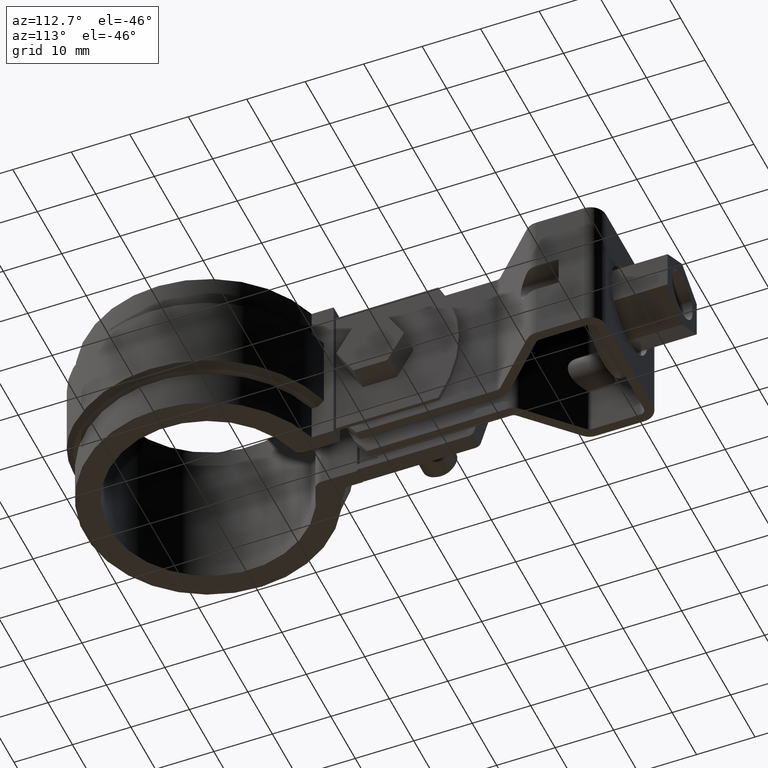
[diagram: clean part render]
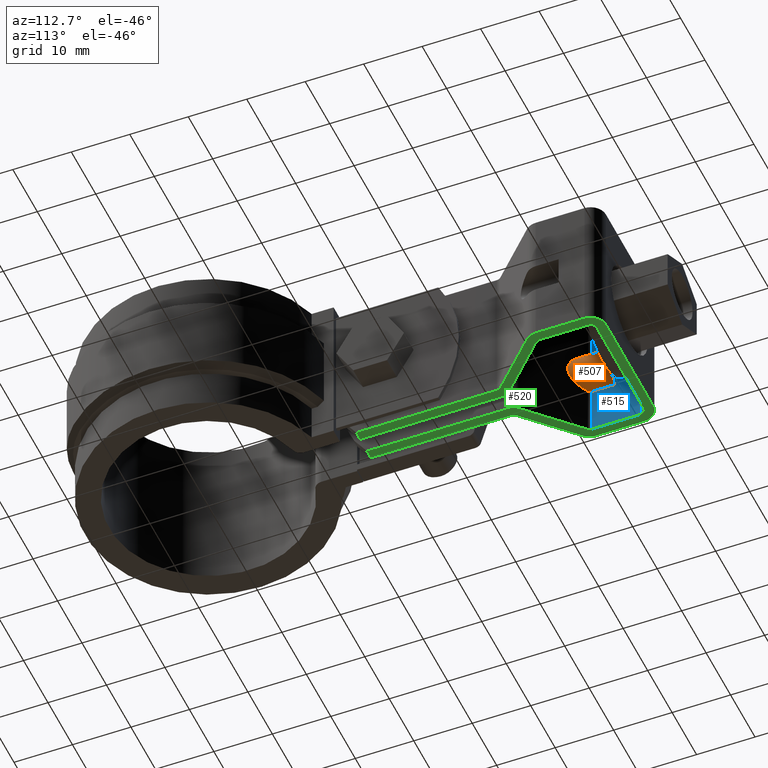
[diagram: same view with three faces highlighted in distinct colors, each labeled with its STEP entity id]
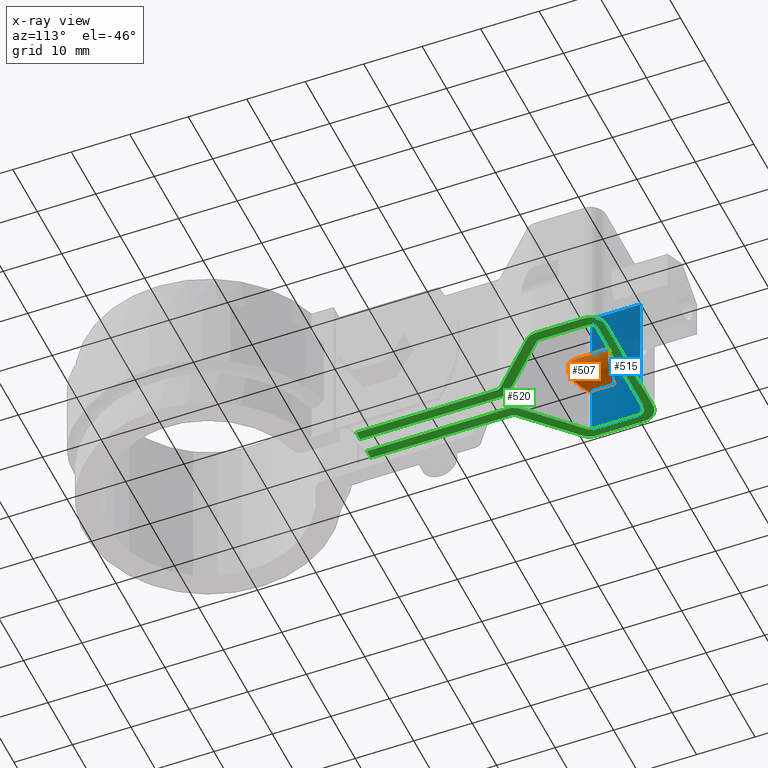
[diagram: x-ray of the same camera — body ghosted, the three highlighted faces saturated]
A machine part, auxiliary view with three faces highlighted in distinct colors.
The next image is the same camera in x-ray (body ghosted, the three faces saturated) — at least one of them is partly hidden behind the body in this view.
Their STEP definitions:

[orange] entity #507 — the highlighted cylindrical surface (edge-blend (fillet) strip) has radius 4.25 mm, axis along (-0, -1, -0).
#507 = ADVANCED_FACE( '', ( #995 ), #996, .T. );
#995 = FACE_OUTER_BOUND( '', #2088, .T. );
#996 = CYLINDRICAL_SURFACE( '', #2089, 4.24999999999996 );
#2088 = EDGE_LOOP( '', ( #4572, #4573, #4574, #4575, #4576, #4577 ) );
#2089 = AXIS2_PLACEMENT_3D( '', #4578, #4579, #4580 );
#4572 = ORIENTED_EDGE( '', *, *, #6560, .T. );
#4573 = ORIENTED_EDGE( '', *, *, #6561, .T. );
#4574 = ORIENTED_EDGE( '', *, *, #6562, .F. );
#4575 = ORIENTED_EDGE( '', *, *, #6563, .T. );
#4576 = ORIENTED_EDGE( '', *, *, #6564, .T. );
#4577 = ORIENTED_EDGE( '', *, *, #6565, .T. );
#4578 = CARTESIAN_POINT( '', ( -12.2499991883340, 55.0043600835313, -12.4999979356177 ) );
#4579 = DIRECTION( '', ( -6.88262000006329E-009, -1.00000000000000, -1.66499459745878E-008 ) );
#4580 = DIRECTION( '', ( 4.22902755342790E-010, -1.66499459774985E-008, 1.00000000000000 ) );
#6560 = EDGE_CURVE( '', #7783, #7784, #7785, .T. );
#6561 = EDGE_CURVE( '', #7784, #7786, #7787, .T. );
#6562 = EDGE_CURVE( '', #7788, #7786, #7789, .T. );
#6563 = EDGE_CURVE( '', #7788, #7790, #7791, .F. );
#6564 = EDGE_CURVE( '', #7790, #7792, #7793, .T. );
#6565 = EDGE_CURVE( '', #7792, #7783, #7794, .T. );
#7783 = VERTEX_POINT( '', #11072 );
#7784 = VERTEX_POINT( '', #11073 );
#7785 = B_SPLINE_CURVE_WITH_KNOTS( '', 3, ( #11074, #11075, #11076, #11077, #11078, #11079 ), .UNSPECIFIED., .F., .F., ( 4, 2, 4 ), ( 1.73472347597681E-018, 0.000404290461596237, 0.000808580923192472 ), .UNSPECIFIED. );
#7786 = VERTEX_POINT( '', #11080 );
#7787 = LINE( '', #11081, #11082 );
#7788 = VERTEX_POINT( '', #11083 );
#7789 = CIRCLE( '', #11084, 4.24999999999996 );
#7790 = VERTEX_POINT( '', #11085 );
#7791 = LINE( '', #11086, #11087 );
#7792 = VERTEX_POINT( '', #11088 );
#7793 = B_SPLINE_CURVE_WITH_KNOTS( '', 3, ( #11089, #11090, #11091, #11092, #11093, #11094 ), .UNSPECIFIED., .F., .F., ( 4, 2, 4 ), ( 0.000000000000000, 0.000404110423349704, 0.000808220846699408 ), .UNSPECIFIED. );
#7794 = ELLIPSE( '', #11095, 5.93756228945901, 4.24999999999996 );
#11072 = CARTESIAN_POINT( '', ( -10.3483229884432, 60.3843839380978, -16.3008040462568 ) );
#11073 = CARTESIAN_POINT( '', ( -10.6499991480440, 61.1001659069656, -16.4373192593215 ) );
#11074 = CARTESIAN_POINT( '', ( -10.3483229884432, 60.3843839380978, -16.3008040462568 ) );
#11075 = CARTESIAN_POINT( '', ( -10.4403800526316, 60.4741957058691, -16.3468634112599 ) );
#11076 = CARTESIAN_POINT( '', ( -10.5165789047283, 60.5836410453053, -16.3808512225649 ) );
#11077 = CARTESIAN_POINT( '', ( -10.6216006182373, 60.8285982610336, -16.4260756434999 ) );
#11078 = CARTESIAN_POINT( '', ( -10.6499991489850, 60.9634412335729, -16.4373192615979 ) );
#11079 = CARTESIAN_POINT( '', ( -10.6499991480440, 61.1001659069656, -16.4373192593215 ) );
#11080 = CARTESIAN_POINT( '', ( -10.6499991211729, 65.0043601380753, -16.4373191943168 ) );
#11081 = CARTESIAN_POINT( '', ( -10.6499992244122, 50.0043601380756, -16.4373194440660 ) );
#11082 = VECTOR( '', #12891, 1000.00000000000 );
#11083 = CARTESIAN_POINT( '', ( -10.6499991178429, 65.0043600069629, -8.56267634527287 ) );
#11084 = AXIS2_PLACEMENT_3D( '', #12892, #12893, #12894 );
#11085 = CARTESIAN_POINT( '', ( -10.6499991447140, 61.1001657758532, -8.56267641027748 ) );
#11086 = CARTESIAN_POINT( '', ( -10.6499992210822, 50.0043600069632, -8.56267659502205 ) );
#11087 = VECTOR( '', #12895, 1000.00000000000 );
#11088 = CARTESIAN_POINT( '', ( -10.3483229852286, 60.3843838115314, -8.69919164743281 ) );
#11089 = CARTESIAN_POINT( '', ( -10.6499991447140, 61.1001657758532, -8.56267641027748 ) );
#11090 = CARTESIAN_POINT( '', ( -10.6499991456546, 60.9634899730668, -8.56267641255313 ) );
#11091 = CARTESIAN_POINT( '', ( -10.6217324550526, 60.8290999481816, -8.57386686525271 ) );
#11092 = CARTESIAN_POINT( '', ( -10.5168987984915, 60.5841935845775, -8.61900312277895 ) );
#11093 = CARTESIAN_POINT( '', ( -10.4403723341925, 60.4741880507589, -8.65313613953819 ) );
#11094 = CARTESIAN_POINT( '', ( -10.3483229852286, 60.3843838115314, -8.69919164743281 ) );
#11095 = AXIS2_PLACEMENT_3D( '', #12896, #12897, #12898 );
#12891 = DIRECTION( '', ( 6.88262000006329E-009, 1.00000000000000, 1.66499459745878E-008 ) );
#12892 = CARTESIAN_POINT( '', ( -12.2499991195078, 65.0043600835313, -12.4999977691182 ) );
#12893 = DIRECTION( '', ( 6.88262000006329E-009, 1.00000000000000, 1.66499459745878E-008 ) );
#12894 = DIRECTION( '', ( 4.22881530490849E-010, -1.66499459774983E-008, 1.00000000000000 ) );
#12895 = DIRECTION( '', ( 6.88262000006329E-009, 1.00000000000000, 1.66499459745878E-008 ) );
#12896 = CARTESIAN_POINT( '', ( -12.2499991385361, 62.2396776211038, -12.4999978151501 ) );
#12897 = DIRECTION( '', ( 0.698323840456956, 0.715781959712207, 1.16224225884510E-008 ) );
#12898 = DIRECTION( '', ( -0.715781959712207, 0.698323840456956, 1.19297453099727E-008 ) );

[blue] entity #515 — the highlighted planar face has unit normal (1, -0, -0).
#515 = ADVANCED_FACE( '', ( #1012 ), #1013, .T. );
#1012 = FACE_OUTER_BOUND( '', #2105, .T. );
#1013 = PLANE( '', #2106 );
#2105 = EDGE_LOOP( '', ( #4634, #4635, #4636, #4637, #4638, #4639, #4640, #4641, #4642, #4643 ) );
#2106 = AXIS2_PLACEMENT_3D( '', #4644, #4645, #4646 );
#4634 = ORIENTED_EDGE( '', *, *, #6561, .F. );
#4635 = ORIENTED_EDGE( '', *, *, #6584, .T. );
#4636 = ORIENTED_EDGE( '', *, *, #6587, .F. );
#4637 = ORIENTED_EDGE( '', *, *, #6588, .F. );
#4638 = ORIENTED_EDGE( '', *, *, #6478, .T. );
#4639 = ORIENTED_EDGE( '', *, *, #6589, .T. );
#4640 = ORIENTED_EDGE( '', *, *, #6563, .F. );
#4641 = ORIENTED_EDGE( '', *, *, #6568, .F. );
#4642 = ORIENTED_EDGE( '', *, *, #6577, .F. );
#4643 = ORIENTED_EDGE( '', *, *, #6566, .F. );
#4644 = CARTESIAN_POINT( '', ( -10.6499990839383, 69.4043598643950, 2.30346490492916E-006 ) );
#4645 = DIRECTION( '', ( 1.00000000000000, -6.88261999302233E-009, -4.22881814054225E-010 ) );
#4646 = DIRECTION( '', ( 6.88262000006329E-009, 1.00000000000000, 1.66499459745878E-008 ) );
#6478 = EDGE_CURVE( '', #7642, #7640, #7643, .T. );
#6561 = EDGE_CURVE( '', #7784, #7786, #7787, .T. );
#6563 = EDGE_CURVE( '', #7788, #7790, #7791, .F. );
#6566 = EDGE_CURVE( '', #7786, #7795, #7796, .T. );
#6568 = EDGE_CURVE( '', #7797, #7788, #7799, .T. );
#6577 = EDGE_CURVE( '', #7795, #7797, #7814, .T. );
#6584 = EDGE_CURVE( '', #7784, #7823, #7825, .T. );
#6587 = EDGE_CURVE( '', #7828, #7823, #7829, .T. );
#6588 = EDGE_CURVE( '', #7642, #7828, #7830, .T. );
#6589 = EDGE_CURVE( '', #7640, #7790, #7831, .T. );
#7640 = VERTEX_POINT( '', #10854 );
#7642 = VERTEX_POINT( '', #10856 );
#7643 = LINE( '', #10857, #10858 );
#7784 = VERTEX_POINT( '', #11073 );
#7786 = VERTEX_POINT( '', #11080 );
#7787 = LINE( '', #11081, #11082 );
#7788 = VERTEX_POINT( '', #11083 );
#7790 = VERTEX_POINT( '', #11085 );
#7791 = LINE( '', #11086, #11087 );
#7795 = VERTEX_POINT( '', #11096 );
#7796 = LINE( '', #11097, #11098 );
#7797 = VERTEX_POINT( '', #11099 );
#7799 = LINE( '', #11101, #11102 );
#7814 = LINE( '', #11136, #11137 );
#7823 = VERTEX_POINT( '', #11149 );
#7825 = LINE( '', #11151, #11152 );
#7828 = VERTEX_POINT( '', #11157 );
#7829 = LINE( '', #11158, #11159 );
#7830 = LINE( '', #11160, #11161 );
#7831 = LINE( '', #11162, #11163 );
#10854 = CARTESIAN_POINT( '', ( -10.6499991410930, 61.1001656332851, 2.16520051887770E-006 ) );
#10856 = CARTESIAN_POINT( '', ( -10.6499990839383, 69.4043598643950, 2.30346490492916E-006 ) );
#10857 = CARTESIAN_POINT( '', ( -10.6499990839383, 69.4043598643950, 2.30346490492916E-006 ) );
#10858 = VECTOR( '', #12755, 1000.00000000000 );
#11073 = CARTESIAN_POINT( '', ( -10.6499991480440, 61.1001659069656, -16.4373192593215 ) );
#11080 = CARTESIAN_POINT( '', ( -10.6499991211729, 65.0043601380753, -16.4373191943168 ) );
#11081 = CARTESIAN_POINT( '', ( -10.6499992244122, 50.0043601380756, -16.4373194440660 ) );
#11082 = VECTOR( '', #12891, 1000.00000000000 );
#11083 = CARTESIAN_POINT( '', ( -10.6499991178429, 65.0043600069629, -8.56267634527287 ) );
#11085 = CARTESIAN_POINT( '', ( -10.6499991447140, 61.1001657758532, -8.56267641027748 ) );
#11086 = CARTESIAN_POINT( '', ( -10.6499992210822, 50.0043600069632, -8.56267659502205 ) );
#11087 = VECTOR( '', #12895, 1000.00000000000 );
#11096 = CARTESIAN_POINT( '', ( -10.6499991204012, 65.0043601076915, -14.6124607872226 ) );
#11097 = CARTESIAN_POINT( '', ( -10.6499991142219, 65.0043598643950, 2.23020514555916E-006 ) );
#11098 = VECTOR( '', #12899, 1000.00000000000 );
#11099 = CARTESIAN_POINT( '', ( -10.6499991186146, 65.0043600373467, -10.3875347523671 ) );
#11101 = CARTESIAN_POINT( '', ( -10.6499991142219, 65.0043598643950, 2.23020514555916E-006 ) );
#11102 = VECTOR( '', #12903, 1000.00000000000 );
#11136 = CARTESIAN_POINT( '', ( -10.6499991142219, 65.0043598643950, 2.23020514555916E-006 ) );
#11137 = VECTOR( '', #12916, 1000.00000000000 );
#11149 = CARTESIAN_POINT( '', ( -10.6499991516650, 61.1001660495337, -24.9999978347995 ) );
#11151 = CARTESIAN_POINT( '', ( -10.6499991410930, 61.1001656332851, 2.16520051887770E-006 ) );
#11152 = VECTOR( '', #12929, 1000.00000000000 );
#11157 = CARTESIAN_POINT( '', ( -10.6499990945104, 69.4043602806437, -24.9999976965351 ) );
#11158 = CARTESIAN_POINT( '', ( -10.6499990945104, 69.4043602806437, -24.9999976965351 ) );
#11159 = VECTOR( '', #12932, 1000.00000000000 );
#11160 = CARTESIAN_POINT( '', ( -10.6499990839383, 69.4043598643950, 2.30346490492916E-006 ) );
#11161 = VECTOR( '', #12933, 1000.00000000000 );
#11162 = CARTESIAN_POINT( '', ( -10.6499991410930, 61.1001656332851, 2.16520051887770E-006 ) );
#11163 = VECTOR( '', #12934, 1000.00000000000 );
#12755 = DIRECTION( '', ( -6.88262000006329E-009, -1.00000000000000, -1.66499459745878E-008 ) );
#12891 = DIRECTION( '', ( 6.88262000006329E-009, 1.00000000000000, 1.66499459745878E-008 ) );
#12895 = DIRECTION( '', ( 6.88262000006329E-009, 1.00000000000000, 1.66499459745878E-008 ) );
#12899 = DIRECTION( '', ( 4.22881699458974E-010, -1.66499459774983E-008, 1.00000000000000 ) );
#12903 = DIRECTION( '', ( 4.22881699458974E-010, -1.66499459774983E-008, 1.00000000000000 ) );
#12916 = DIRECTION( '', ( 4.22881699458974E-010, -1.66499459774983E-008, 1.00000000000000 ) );
#12929 = DIRECTION( '', ( -4.22881699458974E-010, 1.66499459774983E-008, -1.00000000000000 ) );
#12932 = DIRECTION( '', ( -6.88262000006329E-009, -1.00000000000000, -1.66499459745878E-008 ) );
#12933 = DIRECTION( '', ( -4.22881699458974E-010, 1.66499459774983E-008, -1.00000000000000 ) );
#12934 = DIRECTION( '', ( -4.22881699458974E-010, 1.66499459774983E-008, -1.00000000000000 ) );

[green] entity #520 — the highlighted planar face has unit normal (-0, 0, -1).
#520 = ADVANCED_FACE( '', ( #1024 ), #1025, .T. );
#1024 = FACE_OUTER_BOUND( '', #2117, .T. );
#1025 = PLANE( '', #2118 );
#2117 = EDGE_LOOP( '', ( #4677, #4678, #4679, #4680, #4681, #4682, #4683, #4684, #4685, #4686, #4687, #4688, #4689, #4690, #4691, #4692, #4693, #4694, #4695, #4696, #4697, #4698, #4699, #4700, #4701, #4702, #4703, #4704 ) );
#2118 = AXIS2_PLACEMENT_3D( '', #4705, #4706, #4707 );
#4677 = ORIENTED_EDGE( '', *, *, #6585, .T. );
#4678 = ORIENTED_EDGE( '', *, *, #6550, .T. );
#4679 = ORIENTED_EDGE( '', *, *, #6559, .F. );
#4680 = ORIENTED_EDGE( '', *, *, #6553, .F. );
#4681 = ORIENTED_EDGE( '', *, *, #6558, .F. );
#4682 = ORIENTED_EDGE( '', *, *, #6547, .T. );
#4683 = ORIENTED_EDGE( '', *, *, #6594, .T. );
#4684 = ORIENTED_EDGE( '', *, *, #6595, .T. );
#4685 = ORIENTED_EDGE( '', *, *, #6596, .T. );
#4686 = ORIENTED_EDGE( '', *, *, #6502, .T. );
#4687 = ORIENTED_EDGE( '', *, *, #6593, .T. );
#4688 = ORIENTED_EDGE( '', *, *, #6545, .F. );
#4689 = ORIENTED_EDGE( '', *, *, #6532, .F. );
#4690 = ORIENTED_EDGE( '', *, *, #6597, .F. );
#4691 = ORIENTED_EDGE( '', *, *, #6598, .F. );
#4692 = ORIENTED_EDGE( '', *, *, #6599, .F. );
#4693 = ORIENTED_EDGE( '', *, *, #6509, .T. );
#4694 = ORIENTED_EDGE( '', *, *, #6505, .T. );
#4695 = ORIENTED_EDGE( '', *, *, #6600, .T. );
#4696 = ORIENTED_EDGE( '', *, *, #6601, .F. );
#4697 = ORIENTED_EDGE( '', *, *, #6538, .F. );
#4698 = ORIENTED_EDGE( '', *, *, #6535, .F. );
#4699 = ORIENTED_EDGE( '', *, *, #6542, .F. );
#4700 = ORIENTED_EDGE( '', *, *, #6543, .F. );
#4701 = ORIENTED_EDGE( '', *, *, #6592, .T. );
#4702 = ORIENTED_EDGE( '', *, *, #6590, .T. );
#4703 = ORIENTED_EDGE( '', *, *, #6587, .T. );
#4704 = ORIENTED_EDGE( '', *, *, #6583, .T. );
#4705 = CARTESIAN_POINT( '', ( -9.64999909451039, 69.4043602737611, -24.9999976969580 ) );
#4706 = DIRECTION( '', ( -4.22881699458974E-010, 1.66499459774983E-008, -1.00000000000000 ) );
#4707 = DIRECTION( '', ( 6.88262000006329E-009, 1.00000000000000, 1.66499459745878E-008 ) );
#6502 = EDGE_CURVE( '', #7689, #7690, #7691, .T. );
#6505 = EDGE_CURVE( '', #7694, #7695, #7696, .T. );
#6509 = EDGE_CURVE( '', #7701, #7694, #7702, .T. );
#6532 = EDGE_CURVE( '', #7738, #7740, #7741, .T. );
#6535 = EDGE_CURVE( '', #7743, #7745, #7746, .T. );
#6538 = EDGE_CURVE( '', #7745, #7749, #7750, .T. );
#6542 = EDGE_CURVE( '', #7753, #7743, #7755, .T. );
#6543 = EDGE_CURVE( '', #7756, #7753, #7757, .T. );
#6545 = EDGE_CURVE( '', #7740, #7759, #7760, .T. );
#6547 = EDGE_CURVE( '', #7762, #7763, #7764, .F. );
#6550 = EDGE_CURVE( '', #7767, #7768, #7769, .T. );
#6553 = EDGE_CURVE( '', #7772, #7773, #7774, .T. );
#6558 = EDGE_CURVE( '', #7762, #7772, #7781, .T. );
#6559 = EDGE_CURVE( '', #7773, #7768, #7782, .T. );
#6583 = EDGE_CURVE( '', #7823, #7821, #7824, .T. );
#6585 = EDGE_CURVE( '', #7821, #7767, #7826, .T. );
#6587 = EDGE_CURVE( '', #7828, #7823, #7829, .T. );
#6590 = EDGE_CURVE( '', #7832, #7828, #7833, .T. );
#6592 = EDGE_CURVE( '', #7756, #7832, #7835, .T. );
#6593 = EDGE_CURVE( '', #7690, #7759, #7836, .T. );
#6594 = EDGE_CURVE( '', #7763, #7837, #7838, .T. );
#6595 = EDGE_CURVE( '', #7837, #7839, #7840, .T. );
#6596 = EDGE_CURVE( '', #7839, #7689, #7841, .T. );
#6597 = EDGE_CURVE( '', #7842, #7738, #7843, .T. );
#6598 = EDGE_CURVE( '', #7844, #7842, #7845, .T. );
#6599 = EDGE_CURVE( '', #7701, #7844, #7846, .F. );
#6600 = EDGE_CURVE( '', #7695, #7847, #7848, .T. );
#6601 = EDGE_CURVE( '', #7749, #7847, #7849, .T. );
#7689 = VERTEX_POINT( '', #10917 );
#7690 = VERTEX_POINT( '', #10918 );
#7691 = CIRCLE( '', #10919, 2.59999999999999 );
#7694 = VERTEX_POINT( '', #10924 );
#7695 = VERTEX_POINT( '', #10925 );
#7696 = LINE( '', #10926, #10927 );
#7701 = VERTEX_POINT( '', #10932 );
#7702 = LINE( '', #10933, #10934 );
#7738 = VERTEX_POINT( '', #11007 );
#7740 = VERTEX_POINT( '', #11010 );
#7741 = LINE( '', #11011, #11012 );
#7743 = VERTEX_POINT( '', #11015 );
#7745 = VERTEX_POINT( '', #11018 );
#7746 = CIRCLE( '', #11019, 0.999999999999999 );
#7749 = VERTEX_POINT( '', #11024 );
#7750 = LINE( '', #11025, #11026 );
#7753 = VERTEX_POINT( '', #11031 );
#7755 = LINE( '', #11034, #11035 );
#7756 = VERTEX_POINT( '', #11036 );
#7757 = CIRCLE( '', #11037, 1.00000000000000 );
#7759 = VERTEX_POINT( '', #11040 );
#7760 = CIRCLE( '', #11041, 2.59999999999999 );
#7762 = VERTEX_POINT( '', #11044 );
#7763 = VERTEX_POINT( '', #11045 );
#7764 = CIRCLE( '', #11046, 1.00000000000000 );
#7767 = VERTEX_POINT( '', #11051 );
#7768 = VERTEX_POINT( '', #11052 );
#7769 = CIRCLE( '', #11053, 2.60000000000000 );
#7772 = VERTEX_POINT( '', #11058 );
#7773 = VERTEX_POINT( '', #11059 );
#7774 = LINE( '', #11060, #11061 );
#7781 = LINE( '', #11068, #11069 );
#7782 = LINE( '', #11070, #11071 );
#7821 = VERTEX_POINT( '', #11146 );
#7823 = VERTEX_POINT( '', #11149 );
#7824 = CIRCLE( '', #11150, 1.00000000000000 );
#7826 = LINE( '', #11153, #11154 );
#7828 = VERTEX_POINT( '', #11157 );
#7829 = LINE( '', #11158, #11159 );
#7832 = VERTEX_POINT( '', #11164 );
#7833 = CIRCLE( '', #11165, 1.00000000000000 );
#7835 = LINE( '', #11168, #11169 );
#7836 = LINE( '', #11170, #11171 );
#7837 = VERTEX_POINT( '', #11172 );
#7838 = LINE( '', #11173, #11174 );
#7839 = VERTEX_POINT( '', #11175 );
#7840 = CIRCLE( '', #11176, 2.59999999999999 );
#7841 = LINE( '', #11177, #11178 );
#7842 = VERTEX_POINT( '', #11179 );
#7843 = CIRCLE( '', #11180, 2.59999999999999 );
#7844 = VERTEX_POINT( '', #11181 );
#7845 = LINE( '', #11182, #11183 );
#7846 = CIRCLE( '', #11184, 0.999999999999998 );
#7847 = VERTEX_POINT( '', #11185 );
#7848 = LINE( '', #11186, #11187 );
#7849 = CIRCLE( '', #11188, 2.59999999999999 );
#10917 = CARTESIAN_POINT( '', ( -12.2499990945104, 69.4043602916559, -24.9999976958585 ) );
#10918 = CARTESIAN_POINT( '', ( -9.64999907661557, 72.0043602737611, -24.9999976536681 ) );
#10919 = AXIS2_PLACEMENT_3D( '', #12799, #12800, #12801 );
#10924 = CARTESIAN_POINT( '', ( 3.00000061022520, 26.5043602197844, -24.9999984165901 ) );
#10925 = CARTESIAN_POINT( '', ( 1.40000061022521, 26.5043602307966, -24.9999984159135 ) );
#10926 = CARTESIAN_POINT( '', ( 38.4737114668210, 26.5043599805238, -24.9999984375045 ) );
#10927 = VECTOR( '', #12804, 999.999999999998 );
#10932 = CARTESIAN_POINT( '', ( 3.00000077578076, 50.5585065912165, -24.9999980160898 ) );
#10933 = CARTESIAN_POINT( '', ( 3.00000077868153, 50.9799703601066, -24.9999980090725 ) );
#10934 = VECTOR( '', #12814, 1000.00000000000 );
#11007 = CARTESIAN_POINT( '', ( 12.2500008483350, 61.1001659221462, -24.9999978444835 ) );
#11010 = CARTESIAN_POINT( '', ( 12.2500009054896, 69.4043601230320, -24.9999977062191 ) );
#11011 = CARTESIAN_POINT( '', ( 12.2500008483350, 61.1001659221462, -24.9999978444835 ) );
#11012 = VECTOR( '', #12845, 1000.00000000000 );
#11015 = CARTESIAN_POINT( '', ( 10.6500008483350, 61.1001659029342, -24.9999978438068 ) );
#11018 = CARTESIAN_POINT( '', ( 10.3483246789390, 60.3843839404921, -24.9999978555970 ) );
#11019 = AXIS2_PLACEMENT_3D( '', #12848, #12849, #12850 );
#11024 = CARTESIAN_POINT( '', ( 2.18435881621025, 52.4195396743543, -24.9999979847588 ) );
#11025 = CARTESIAN_POINT( '', ( 10.3483246789390, 60.3843839404921, -24.9999978555970 ) );
#11026 = VECTOR( '', #12853, 1000.00000000000 );
#11031 = CARTESIAN_POINT( '', ( 10.6500009054896, 69.4043601340442, -24.9999977055425 ) );
#11034 = CARTESIAN_POINT( '', ( 10.6500009054896, 69.4043601340442, -24.9999977055425 ) );
#11035 = VECTOR( '', #12857, 1000.00000000000 );
#11036 = CARTESIAN_POINT( '', ( 9.65000091237222, 70.4043601409268, -24.9999976884696 ) );
#11037 = AXIS2_PLACEMENT_3D( '', #12858, #12859, #12860 );
#11040 = CARTESIAN_POINT( '', ( 9.65000092338442, 72.0043601409268, -24.9999976618297 ) );
#11041 = AXIS2_PLACEMENT_3D( '', #12862, #12863, #12864 );
#11044 = CARTESIAN_POINT( '', ( -2.99999922421923, 50.5585066325120, -24.9999980135526 ) );
#11045 = CARTESIAN_POINT( '', ( -3.30167538376227, 51.2742885991068, -24.9999980015073 ) );
#11046 = AXIS2_PLACEMENT_3D( '', #12866, #12867, #12868 );
#11051 = CARTESIAN_POINT( '', ( -2.18435723903115, 52.4195397044222, -24.9999979829114 ) );
#11052 = CARTESIAN_POINT( '', ( -1.39999922421924, 50.5585065912757, -24.9999980142292 ) );
#11053 = AXIS2_PLACEMENT_3D( '', #12871, #12872, #12873 );
#11058 = CARTESIAN_POINT( '', ( -2.99999938977477, 26.5043602610799, -24.9999984140528 ) );
#11059 = CARTESIAN_POINT( '', ( -1.39999938977478, 26.5043602500677, -24.9999984147294 ) );
#11060 = CARTESIAN_POINT( '', ( -38.4737102463707, 26.5043605101234, -24.9999984049649 ) );
#11061 = VECTOR( '', #12876, 1000.00000000000 );
#11068 = CARTESIAN_POINT( '', ( -2.99999922131845, 50.9799704014021, -24.9999980065353 ) );
#11069 = VECTOR( '', #12889, 1000.00000000000 );
#11070 = CARTESIAN_POINT( '', ( -1.39999942074657, 22.0043602169796, -24.9999984896542 ) );
#11071 = VECTOR( '', #12890, 1000.00000000000 );
#11146 = CARTESIAN_POINT( '', ( -10.3483229921220, 60.3843840829389, -24.9999978468448 ) );
#11149 = CARTESIAN_POINT( '', ( -10.6499991516650, 61.1001660495337, -24.9999978347995 ) );
#11150 = AXIS2_PLACEMENT_3D( '', #12926, #12927, #12928 );
#11153 = CARTESIAN_POINT( '', ( -10.3483229921220, 60.3843840829389, -24.9999978468448 ) );
#11154 = VECTOR( '', #12930, 1000.00000000000 );
#11157 = CARTESIAN_POINT( '', ( -10.6499990945104, 69.4043602806437, -24.9999976965351 ) );
#11158 = CARTESIAN_POINT( '', ( -10.6499990945104, 69.4043602806437, -24.9999976965351 ) );
#11159 = VECTOR( '', #12932, 1000.00000000000 );
#11164 = CARTESIAN_POINT( '', ( -9.64999908762777, 70.4043602737611, -24.9999976803080 ) );
#11165 = AXIS2_PLACEMENT_3D( '', #12935, #12936, #12937 );
#11168 = CARTESIAN_POINT( '', ( 9.65000091237224, 70.4043601409265, -24.9999976884697 ) );
#11169 = VECTOR( '', #12939, 1000.00000000000 );
#11170 = CARTESIAN_POINT( '', ( -9.64999907661557, 72.0043602737611, -24.9999976536681 ) );
#11171 = VECTOR( '', #12940, 1000.00000000000 );
#11172 = CARTESIAN_POINT( '', ( -11.4656411368531, 59.2391329776235, -24.9999978654407 ) );
#11173 = CARTESIAN_POINT( '', ( -3.90167537973343, 51.8596544298260, -24.9999979915072 ) );
#11174 = VECTOR( '', #12941, 1000.00000000000 );
#11175 = CARTESIAN_POINT( '', ( -12.2499991516650, 61.1001660907700, -24.9999978341229 ) );
#11176 = AXIS2_PLACEMENT_3D( '', #12942, #12943, #12944 );
#11177 = CARTESIAN_POINT( '', ( -12.2499991516650, 61.1001660907700, -24.9999978341229 ) );
#11178 = VECTOR( '', #12945, 1000.00000000000 );
#11179 = CARTESIAN_POINT( '', ( 11.4656428079055, 59.2391328197965, -24.9999978751379 ) );
#11180 = AXIS2_PLACEMENT_3D( '', #12946, #12947, #12948 );
#11181 = CARTESIAN_POINT( '', ( 3.30167694517671, 51.2742885536587, -24.9999980042997 ) );
#11182 = CARTESIAN_POINT( '', ( 3.90167694920557, 51.8596543761188, -24.9999979948071 ) );
#11183 = VECTOR( '', #12949, 1000.00000000000 );
#11184 = AXIS2_PLACEMENT_3D( '', #12950, #12951, #12952 );
#11185 = CARTESIAN_POINT( '', ( 1.40000077578077, 50.5585065720046, -24.9999980154132 ) );
#11186 = CARTESIAN_POINT( '', ( 1.40000057925342, 22.0043601977085, -24.9999984908382 ) );
#11187 = VECTOR( '', #12953, 1000.00000000000 );
#11188 = AXIS2_PLACEMENT_3D( '', #12954, #12955, #12956 );
#12799 = CARTESIAN_POINT( '', ( -9.64999909451039, 69.4043602737611, -24.9999976969580 ) );
#12800 = DIRECTION( '', ( -4.22881699458974E-010, 1.66499459774983E-008, -1.00000000000000 ) );
#12801 = DIRECTION( '', ( -1.00000000000000, 6.88261999302233E-009, 4.22881814054225E-010 ) );
#12804 = DIRECTION( '', ( -1.00000000000000, 6.88262011548296E-009, 4.22881814054227E-010 ) );
#12814 = DIRECTION( '', ( -6.88262023354623E-009, -1.00000000000000, -1.66499459745878E-008 ) );
#12845 = DIRECTION( '', ( 6.88262012252392E-009, 1.00000000000000, 1.66499459745878E-008 ) );
#12848 = CARTESIAN_POINT( '', ( 9.65000084833499, 61.1001659098169, -24.9999978433840 ) );
#12849 = DIRECTION( '', ( -4.22881699458974E-010, 1.66499459774983E-008, -1.00000000000000 ) );
#12850 = DIRECTION( '', ( 1.00000000000000, -6.88262011548296E-009, -4.22881814054228E-010 ) );
#12853 = DIRECTION( '', ( -0.715781969324801, -0.698323830604047, -1.13243629587269E-008 ) );
#12857 = DIRECTION( '', ( -6.88262012252392E-009, -1.00000000000000, -1.66499459745878E-008 ) );
#12858 = CARTESIAN_POINT( '', ( 9.65000090548961, 69.4043601409268, -24.9999977051196 ) );
#12859 = DIRECTION( '', ( -4.22881699458974E-010, 1.66499459774983E-008, -1.00000000000000 ) );
#12860 = DIRECTION( '', ( 6.88262012252392E-009, 1.00000000000000, 1.66499459745878E-008 ) );
#12862 = CARTESIAN_POINT( '', ( 9.65000090548961, 69.4043601409268, -24.9999977051196 ) );
#12863 = DIRECTION( '', ( 4.22881699458974E-010, -1.66499459774983E-008, 1.00000000000000 ) );
#12864 = DIRECTION( '', ( 1.00000000000000, -6.88262011548296E-009, -4.22881814054227E-010 ) );
#12866 = CARTESIAN_POINT( '', ( -3.99999922421923, 50.5585066393946, -24.9999980131297 ) );
#12867 = DIRECTION( '', ( -4.22881699458974E-010, 1.66499459774983E-008, -1.00000000000000 ) );
#12868 = DIRECTION( '', ( -1.00000000000000, 6.88261999302233E-009, 4.22881814054225E-010 ) );
#12871 = CARTESIAN_POINT( '', ( -3.99999922421923, 50.5585066091705, -24.9999980131297 ) );
#12872 = DIRECTION( '', ( -4.22881699458974E-010, 1.66499459774983E-008, -1.00000000000000 ) );
#12873 = DIRECTION( '', ( -1.00000000000000, 6.88261999302233E-009, 4.22881814054225E-010 ) );
#12876 = DIRECTION( '', ( 1.00000000000000, -6.88261999302233E-009, -4.22881814054225E-010 ) );
#12889 = DIRECTION( '', ( -6.88261988904099E-009, -1.00000000000000, -1.66499459745878E-008 ) );
#12890 = DIRECTION( '', ( 6.88261988904099E-009, 1.00000000000000, 1.66499459745878E-008 ) );
#12926 = CARTESIAN_POINT( '', ( -9.64999915166500, 61.1001660426511, -24.9999978352224 ) );
#12927 = DIRECTION( '', ( 4.22881699458974E-010, -1.66499459774983E-008, 1.00000000000000 ) );
#12928 = DIRECTION( '', ( -1.00000000000000, 6.88261999302233E-009, 4.22881814054225E-010 ) );
#12930 = DIRECTION( '', ( 0.715781959712207, -0.698323840456956, -1.19297453099727E-008 ) );
#12932 = DIRECTION( '', ( -6.88262000006329E-009, -1.00000000000000, -1.66499459745878E-008 ) );
#12935 = CARTESIAN_POINT( '', ( -9.64999909451039, 69.4043602737611, -24.9999976969580 ) );
#12936 = DIRECTION( '', ( 4.22881699458974E-010, -1.66499459774983E-008, 1.00000000000000 ) );
#12937 = DIRECTION( '', ( 6.88262000006329E-009, 1.00000000000000, 1.66499459745878E-008 ) );
#12939 = DIRECTION( '', ( -1.00000000000000, 6.88261999302233E-009, 4.22881814054225E-010 ) );
#12940 = DIRECTION( '', ( 1.00000000000000, -6.88261999302233E-009, -4.22881814054225E-010 ) );
#12941 = DIRECTION( '', ( -0.715781959712207, 0.698323840456956, 1.19297453099727E-008 ) );
#12942 = CARTESIAN_POINT( '', ( -9.64999915166500, 61.1001660728752, -24.9999978352224 ) );
#12943 = DIRECTION( '', ( -4.22881699458974E-010, 1.66499459774983E-008, -1.00000000000000 ) );
#12944 = DIRECTION( '', ( -0.698323840456957, -0.715781959712206, -1.16224225884510E-008 ) );
#12945 = DIRECTION( '', ( 6.88262000006329E-009, 1.00000000000000, 1.66499459745878E-008 ) );
#12946 = CARTESIAN_POINT( '', ( 9.65000084833499, 61.1001659400410, -24.9999978433840 ) );
#12947 = DIRECTION( '', ( 4.22881699458974E-010, -1.66499459774983E-008, 1.00000000000000 ) );
#12948 = DIRECTION( '', ( 0.698323830604045, -0.715781969324803, -1.22130394891839E-008 ) );
#12949 = DIRECTION( '', ( 0.715781969324801, 0.698323830604047, 1.13243629587269E-008 ) );
#12950 = CARTESIAN_POINT( '', ( 4.00000077578076, 50.5585065843339, -24.9999980165127 ) );
#12951 = DIRECTION( '', ( 4.22881699458974E-010, -1.66499459774983E-008, 1.00000000000000 ) );
#12952 = DIRECTION( '', ( 1.00000000000000, -6.88262011548296E-009, -4.22881814054227E-010 ) );
#12953 = DIRECTION( '', ( 6.88262023354623E-009, 1.00000000000000, 1.66499459745878E-008 ) );
#12954 = CARTESIAN_POINT( '', ( 4.00000077578076, 50.5585065541098, -24.9999980165127 ) );
#12955 = DIRECTION( '', ( 4.22881699458974E-010, -1.66499459774983E-008, 1.00000000000000 ) );
#12956 = DIRECTION( '', ( 1.00000000000000, -6.88262011548296E-009, -4.22881814054227E-010 ) );